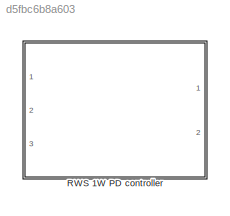
MODEL slx_d5fbc6b8a603
KIND library
CONFIG AbsTol = auto
CONFIG EnableMultiTasking = on
CONFIG FixedStep = auto
CONFIG MaxStep = auto
CONFIG MinStep = auto
CONFIG RelTol = 1e-3
CONFIG SampleTimeConstraint = Unconstrained
CONFIG Solver = ode45
CONFIG SolverName = ode45
CONFIG StartTime = 0.0
CONFIG StopTime = 10.0
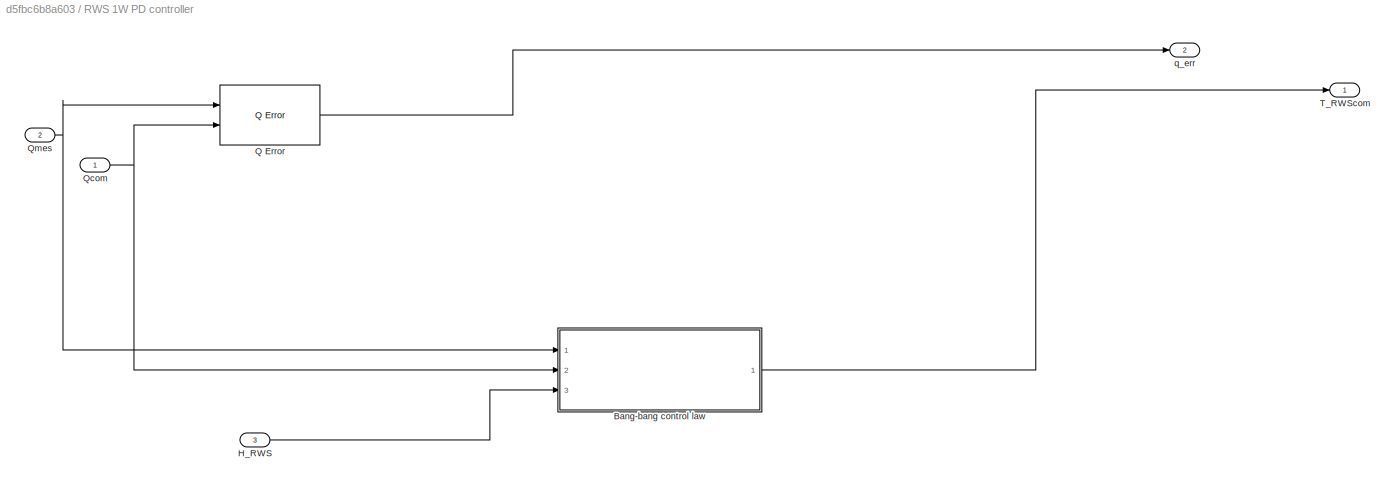
BLOCK [SubSystem] RWS 1W PD controller
  Ports = [3, 2]
  RequestExecContextInheritance = off
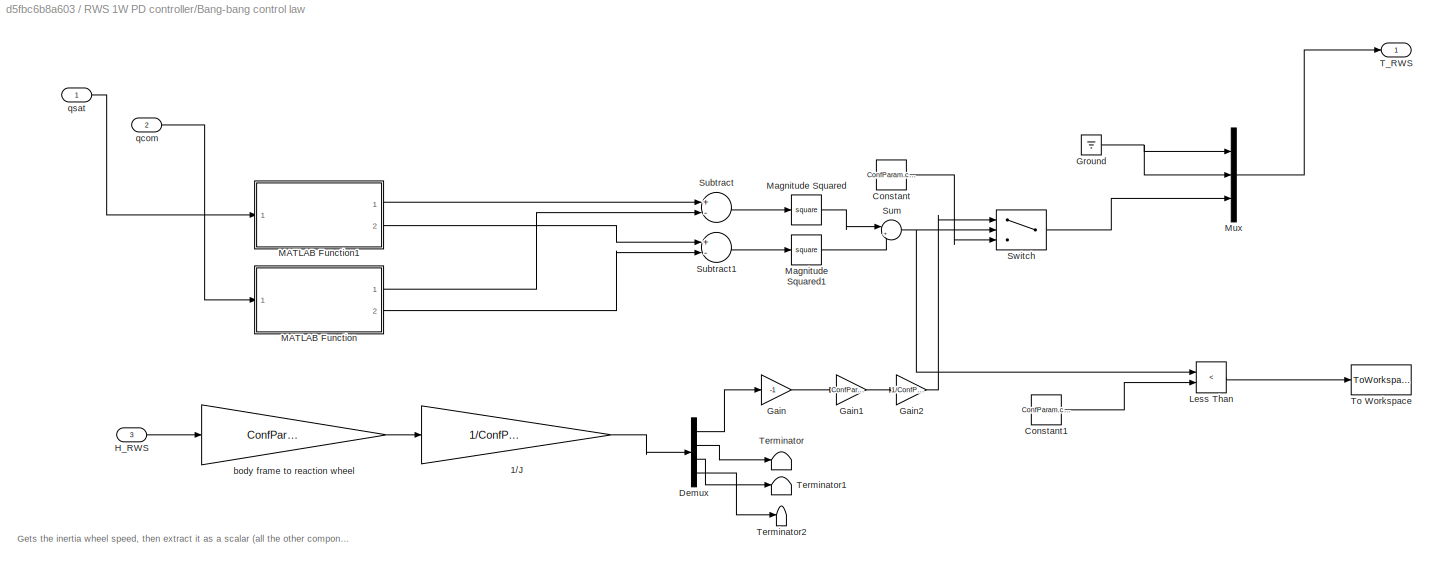
BLOCK [SubSystem] RWS 1W PD controller/Bang-bang control law
  Ports = [3, 1]
  RequestExecContextInheritance = off
BLOCK [Gain] RWS 1W PD controller/Bang-bang control law/1//J
  Gain = 1/ConfParam.confRWS.I_RWS
  OutDataTypeStr = Inherit: Inherit via internal rule
  ParamDataTypeStr = Inherit: Inherit via internal rule
  SaturateOnIntegerOverflow = off
BLOCK [Constant] RWS 1W PD controller/Bang-bang control law/Constant
  Value = ConfParam.confRWS.Tmax
BLOCK [Constant] RWS 1W PD controller/Bang-bang control law/Constant1
  Value = ConfParam.confMaxAngle.Obj^2
BLOCK [Demux] RWS 1W PD controller/Bang-bang control law/Demux
  DisplayOption = bar
  Ports = [1, 4]
BLOCK [Gain] RWS 1W PD controller/Bang-bang control law/Gain
  Gain = -1
  OutDataTypeStr = Inherit: Inherit via internal rule
  ParamDataTypeStr = Inherit: Inherit via internal rule
  SaturateOnIntegerOverflow = off
BLOCK [Gain] RWS 1W PD controller/Bang-bang control law/Gain1
  Gain = ConfParam.confRWS.Tmax
  OutDataTypeStr = Inherit: Inherit via internal rule
  ParamDataTypeStr = Inherit: Inherit via internal rule
  SaturateOnIntegerOverflow = off
BLOCK [Gain] RWS 1W PD controller/Bang-bang control law/Gain2
  Gain = 1/ConfParam.confRWS.OmegaMax
  OutDataTypeStr = Inherit: Inherit via internal rule
  ParamDataTypeStr = Inherit: Inherit via internal rule
  SaturateOnIntegerOverflow = off
BLOCK [Ground] RWS 1W PD controller/Bang-bang control law/Ground
BLOCK [Inport] RWS 1W PD controller/Bang-bang control law/H_RWS
  IconDisplay = Port number
  Port = 3
BLOCK [RelationalOperator] RWS 1W PD controller/Bang-bang control law/Less Than
  InputSameDT = off
  Operator = <
  OutDataTypeStr = boolean
  Ports = [2, 1]
  RndMeth = Simplest
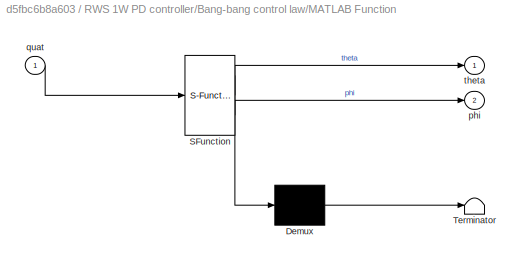
BLOCK [SubSystem] RWS 1W PD controller/Bang-bang control law/MATLAB Function
  ErrorFcn = Stateflow.Translate.translate
  PermitHierarchicalResolution = ExplicitOnly
  Ports = [1, 2]
  RequestExecContextInheritance = off
  SFBlockType = MATLAB Function
  TreatAsAtomicUnit = on
BLOCK [Demux] RWS 1W PD controller/Bang-bang control law/MATLAB Function/ Demux 
  Outputs = 1
  Ports = [1, 1]
BLOCK [S-Function] RWS 1W PD controller/Bang-bang control law/MATLAB Function/ SFunction 
  EnableBusSupport = off
  FunctionName = sf_sfun
  PortCounts = [1 3]
  Ports = [1, 3]
  SFcnIsStateOwnerBlock = off
  SFunctionDeploymentMode = off
  Tag = Stateflow S-Function RWS_1W_PDcontroller 2
BLOCK [Terminator] RWS 1W PD controller/Bang-bang control law/MATLAB Function/ Terminator 
BLOCK [Outport] RWS 1W PD controller/Bang-bang control law/MATLAB Function/phi
  IconDisplay = Port number
  Port = 2
BLOCK [Inport] RWS 1W PD controller/Bang-bang control law/MATLAB Function/quat
  IconDisplay = Port number
BLOCK [Outport] RWS 1W PD controller/Bang-bang control law/MATLAB Function/theta
  IconDisplay = Port number
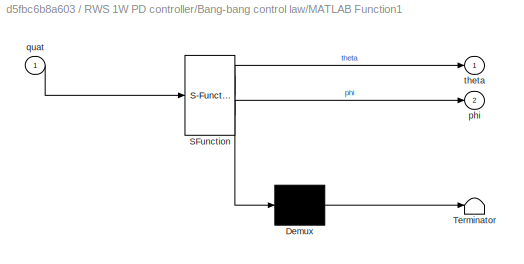
BLOCK [SubSystem] RWS 1W PD controller/Bang-bang control law/MATLAB Function1
  ErrorFcn = Stateflow.Translate.translate
  PermitHierarchicalResolution = ExplicitOnly
  Ports = [1, 2]
  RequestExecContextInheritance = off
  SFBlockType = MATLAB Function
  TreatAsAtomicUnit = on
BLOCK [Demux] RWS 1W PD controller/Bang-bang control law/MATLAB Function1/ Demux 
  Outputs = 1
  Ports = [1, 1]
BLOCK [S-Function] RWS 1W PD controller/Bang-bang control law/MATLAB Function1/ SFunction 
  EnableBusSupport = off
  FunctionName = sf_sfun
  PortCounts = [1 3]
  Ports = [1, 3]
  SFcnIsStateOwnerBlock = off
  SFunctionDeploymentMode = off
  Tag = Stateflow S-Function RWS_1W_PDcontroller 1
BLOCK [Terminator] RWS 1W PD controller/Bang-bang control law/MATLAB Function1/ Terminator 
BLOCK [Outport] RWS 1W PD controller/Bang-bang control law/MATLAB Function1/phi
  IconDisplay = Port number
  Port = 2
BLOCK [Inport] RWS 1W PD controller/Bang-bang control law/MATLAB Function1/quat
  IconDisplay = Port number
BLOCK [Outport] RWS 1W PD controller/Bang-bang control law/MATLAB Function1/theta
  IconDisplay = Port number
BLOCK [Math] RWS 1W PD controller/Bang-bang control law/Magnitude Squared
  Operator = square
  Ports = [1, 1]
BLOCK [Math] RWS 1W PD controller/Bang-bang control law/Magnitude Squared1
  Operator = square
  Ports = [1, 1]
BLOCK [Mux] RWS 1W PD controller/Bang-bang control law/Mux
  DisplayOption = bar
  Inputs = 3
  Ports = [3, 1]
BLOCK [Sum] RWS 1W PD controller/Bang-bang control law/Subtract
  InputSameDT = off
  Inputs = +-
  OutDataTypeStr = Inherit: Inherit via internal rule
  Ports = [2, 1]
  SaturateOnIntegerOverflow = off
BLOCK [Sum] RWS 1W PD controller/Bang-bang control law/Subtract1
  InputSameDT = off
  Inputs = +-
  OutDataTypeStr = Inherit: Inherit via internal rule
  Ports = [2, 1]
  SaturateOnIntegerOverflow = off
BLOCK [Sum] RWS 1W PD controller/Bang-bang control law/Sum
  IconShape = round
  InputSameDT = off
  Inputs = |++
  OutDataTypeStr = Inherit: Inherit via internal rule
  Ports = [2, 1]
  SaturateOnIntegerOverflow = off
BLOCK [Switch] RWS 1W PD controller/Bang-bang control law/Switch
  Criteria = u2 > Threshold
  InputSameDT = off
  SaturateOnIntegerOverflow = off
  Threshold = ConfParam.confMaxAngle.ES^2
BLOCK [Outport] RWS 1W PD controller/Bang-bang control law/T_RWS
  IconDisplay = Port number
BLOCK [Terminator] RWS 1W PD controller/Bang-bang control law/Terminator
BLOCK [Terminator] RWS 1W PD controller/Bang-bang control law/Terminator1
BLOCK [Terminator] RWS 1W PD controller/Bang-bang control law/Terminator2
BLOCK [ToWorkspace] RWS 1W PD controller/Bang-bang control law/To Workspace
  FixptAsFi = on
  MaxDataPoints = inf
  Ports = [1]
  SampleTime = -1
  Save2DSignal = 3-D array (concatenate along third dimension)
  VariableName = in_range
BLOCK [Gain] RWS 1W PD controller/Bang-bang control law/body frame to reaction wheel
  Gain = ConfParam.confRWS.N_bf
  Multiplication = Matrix(K*u)
  OutDataTypeStr = Inherit: Inherit via internal rule
  ParamDataTypeStr = Inherit: Inherit via internal rule
  SaturateOnIntegerOverflow = off
BLOCK [Inport] RWS 1W PD controller/Bang-bang control law/qcom
  IconDisplay = Port number
  Port = 2
BLOCK [Inport] RWS 1W PD controller/Bang-bang control law/qsat
  IconDisplay = Port number
BLOCK [Inport] RWS 1W PD controller/H_RWS
  IconDisplay = Port number
  Port = 3
BLOCK [Reference] RWS 1W PD controller/Q Error  REF=Qerror/Q Error
  Ports = [2, 1]
  SourceBlock = Qerror/Q Error
  SourceType = SubSystem
BLOCK [Inport] RWS 1W PD controller/Qcom
  IconDisplay = Port number
BLOCK [Inport] RWS 1W PD controller/Qmes
  IconDisplay = Port number
  Port = 2
BLOCK [Outport] RWS 1W PD controller/T_RWScom
  IconDisplay = Port number
BLOCK [Outport] RWS 1W PD controller/q_err
  IconDisplay = Port number
  Port = 2
ANNOTATION RWS 1W PD controller/Bang-bang control law: Gets the inertia wheel speed, then extract it as a scalar (all the other components should be 0)
LINE RWS 1W PD controller/Bang-bang control law/1//J:1 -> RWS 1W PD controller/Bang-bang control law/Demux:1
LINE RWS 1W PD controller/Bang-bang control law/Constant1:1 -> RWS 1W PD controller/Bang-bang control law/Less Than:2
LINE RWS 1W PD controller/Bang-bang control law/Constant:1 -> RWS 1W PD controller/Bang-bang control law/Switch:3
LINE RWS 1W PD controller/Bang-bang control law/Demux:1 -> RWS 1W PD controller/Bang-bang control law/Gain:1
LINE RWS 1W PD controller/Bang-bang control law/Demux:2 -> RWS 1W PD controller/Bang-bang control law/Terminator:1
LINE RWS 1W PD controller/Bang-bang control law/Demux:3 -> RWS 1W PD controller/Bang-bang control law/Terminator1:1
LINE RWS 1W PD controller/Bang-bang control law/Demux:4 -> RWS 1W PD controller/Bang-bang control law/Terminator2:1
LINE RWS 1W PD controller/Bang-bang control law/Gain1:1 -> RWS 1W PD controller/Bang-bang control law/Gain2:1
LINE RWS 1W PD controller/Bang-bang control law/Gain2:1 -> RWS 1W PD controller/Bang-bang control law/Switch:1
LINE RWS 1W PD controller/Bang-bang control law/Gain:1 -> RWS 1W PD controller/Bang-bang control law/Gain1:1
NET RWS 1W PD controller/Bang-bang control law/Ground:1 -> RWS 1W PD controller/Bang-bang control law/Mux:1, RWS 1W PD controller/Bang-bang control law/Mux:2
LINE RWS 1W PD controller/Bang-bang control law/H_RWS:1 -> RWS 1W PD controller/Bang-bang control law/body frame to reaction wheel:1
LINE RWS 1W PD controller/Bang-bang control law/Less Than:1 -> RWS 1W PD controller/Bang-bang control law/To Workspace:1
LINE RWS 1W PD controller/Bang-bang control law/MATLAB Function1:1 -> RWS 1W PD controller/Bang-bang control law/Subtract:1
LINE RWS 1W PD controller/Bang-bang control law/MATLAB Function1:2 -> RWS 1W PD controller/Bang-bang control law/Subtract1:1
LINE RWS 1W PD controller/Bang-bang control law/MATLAB Function:1 -> RWS 1W PD controller/Bang-bang control law/Subtract:2
LINE RWS 1W PD controller/Bang-bang control law/MATLAB Function:2 -> RWS 1W PD controller/Bang-bang control law/Subtract1:2
LINE RWS 1W PD controller/Bang-bang control law/Magnitude Squared1:1 -> RWS 1W PD controller/Bang-bang control law/Sum:2
LINE RWS 1W PD controller/Bang-bang control law/Magnitude Squared:1 -> RWS 1W PD controller/Bang-bang control law/Sum:1
LINE RWS 1W PD controller/Bang-bang control law/Mux:1 -> RWS 1W PD controller/Bang-bang control law/T_RWS:1
LINE RWS 1W PD controller/Bang-bang control law/Subtract1:1 -> RWS 1W PD controller/Bang-bang control law/Magnitude Squared1:1
LINE RWS 1W PD controller/Bang-bang control law/Subtract:1 -> RWS 1W PD controller/Bang-bang control law/Magnitude Squared:1
NET RWS 1W PD controller/Bang-bang control law/Sum:1 -> RWS 1W PD controller/Bang-bang control law/Less Than:1, RWS 1W PD controller/Bang-bang control law/Switch:2
LINE RWS 1W PD controller/Bang-bang control law/Switch:1 -> RWS 1W PD controller/Bang-bang control law/Mux:3
LINE RWS 1W PD controller/Bang-bang control law/body frame to reaction wheel:1 -> RWS 1W PD controller/Bang-bang control law/1//J:1
LINE RWS 1W PD controller/Bang-bang control law/qcom:1 -> RWS 1W PD controller/Bang-bang control law/MATLAB Function:1
LINE RWS 1W PD controller/Bang-bang control law/qsat:1 -> RWS 1W PD controller/Bang-bang control law/MATLAB Function1:1
LINE RWS 1W PD controller/Bang-bang control law:1 -> RWS 1W PD controller/T_RWScom:1
LINE RWS 1W PD controller/H_RWS:1 -> RWS 1W PD controller/Bang-bang control law:3
LINE RWS 1W PD controller/Q Error:1 -> RWS 1W PD controller/q_err:1
NET RWS 1W PD controller/Qcom:1 -> RWS 1W PD controller/Bang-bang control law:2, RWS 1W PD controller/Q Error:2
NET RWS 1W PD controller/Qmes:1 -> RWS 1W PD controller/Bang-bang control law:1, RWS 1W PD controller/Q Error:1
note: NET lines group one-source signal fan-out (src -> all destinations, sorted); 1:1 wires keep LINE
CHART RWS 1W PD controller/Bang-bang control law/MATLAB Function1 states=1 transitions=1
  STATE_LABEL 'eML_blk_kernel()'
  STATE_LABEL 'SCRIPT:\nfunction [theta, phi] = extract_sph_angles(quat)\n\n%%% extracts theta and phi from quaternion qsat\n%%% here we consider the angles for the z-axis (0 0 1)\n%%% but it can be changed to any other axis if necessary.\n\nq0 = quat(1);\nq1 = quat(2);\nq2 = quat(3);\nq3 = quat(4);\nP = [2*(q0^2 + q1^2)-1 2*(q1*q2 - q0*q3) 2*(q1*q3 + q2*q0);\n     2*(q1*q2 + q0*q3) 2*(q0^2 + q2^2)-1 2*(q2*q3 - q1*q0);\n    ...<+152ch>'
CHART RWS 1W PD controller/Bang-bang control law/MATLAB Function states=1 transitions=1
  STATE_LABEL 'eML_blk_kernel()'
  STATE_LABEL 'SCRIPT:\nfunction [theta, phi] = extract_sph_angles(quat)\n\n%%% extracts theta and phi from quaternion qsat\n%%% here we consider the angles for the z-axis (0 0 1)\n%%% but it can be changed to any other axis if necessary.\n\nq0 = quat(1);\nq1 = quat(2);\nq2 = quat(3);\nq3 = quat(4);\nP = [2*(q0^2 + q1^2)-1 2*(q1*q2 - q0*q3) 2*(q1*q3 + q2*q0);\n     2*(q1*q2 + q0*q3) 2*(q0^2 + q2^2)-1 2*(q2*q3 - q1*q0);\n    ...<+152ch>'
